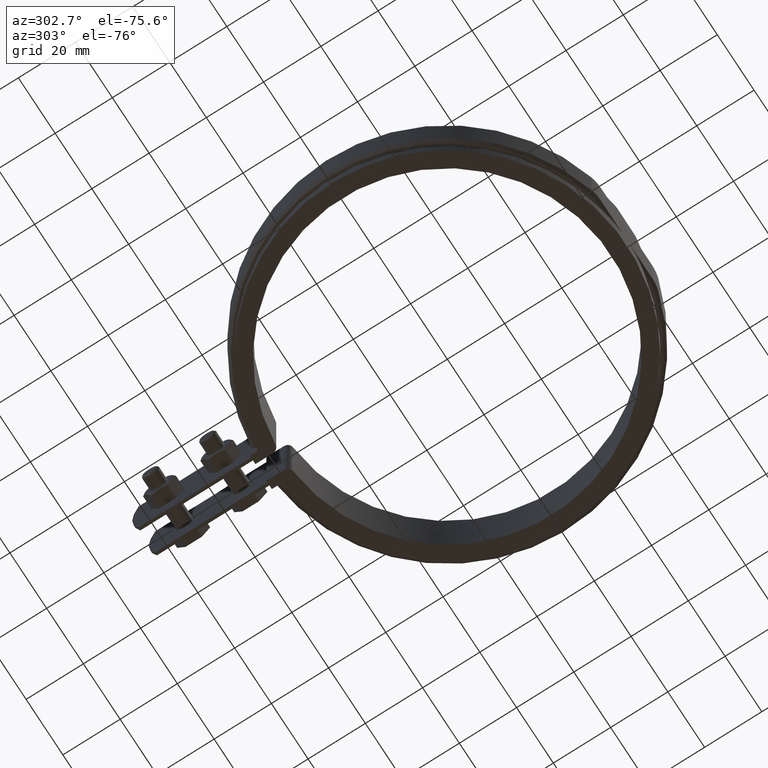
[diagram: clean part render]
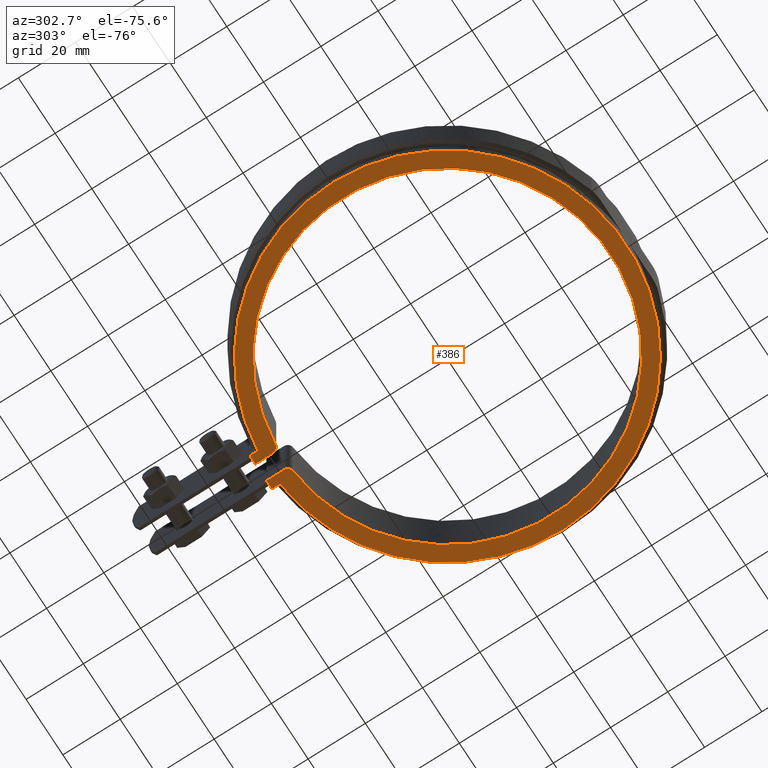
[diagram: same view with one face highlighted and labeled with its STEP entity id]
A machine part, auxiliary view. The second image highlights one B-rep face of the part: STEP entity #386.
In plain terms, the highlighted planar face has unit normal (0, 0, -1).
Its self-contained STEP definition (entity closure, byte-faithful):
#386 = ADVANCED_FACE( '', ( #662 ), #663, .T. );
#662 = FACE_OUTER_BOUND( '', #1512, .T. );
#663 = PLANE( '', #1513 );
#1512 = EDGE_LOOP( '', ( #2955, #2956, #2957, #2958, #2959, #2960, #2961, #2962, #2963, #2964 ) );
#1513 = AXIS2_PLACEMENT_3D( '', #2965, #2966, #2967 );
#2955 = ORIENTED_EDGE( '', *, *, #4119, .F. );
#2956 = ORIENTED_EDGE( '', *, *, #4123, .F. );
#2957 = ORIENTED_EDGE( '', *, *, #4124, .F. );
#2958 = ORIENTED_EDGE( '', *, *, #4125, .F. );
#2959 = ORIENTED_EDGE( '', *, *, #4126, .F. );
#2960 = ORIENTED_EDGE( '', *, *, #4127, .F. );
#2961 = ORIENTED_EDGE( '', *, *, #4128, .F. );
#2962 = ORIENTED_EDGE( '', *, *, #4129, .F. );
#2963 = ORIENTED_EDGE( '', *, *, #4062, .F. );
#2964 = ORIENTED_EDGE( '', *, *, #4094, .F. );
#2965 = CARTESIAN_POINT( '', ( 5.23468562216772, 60.8144995942392, -14.0000000000000 ) );
#2966 = DIRECTION( '', ( 0.000000000000000, 0.000000000000000, -1.00000000000000 ) );
#2967 = DIRECTION( '', ( 0.000000000000000, -1.00000000000000, 0.000000000000000 ) );
#4062 = EDGE_CURVE( '', #4680, #4682, #4683, .T. );
#4094 = EDGE_CURVE( '', #4738, #4680, #4740, .F. );
#4119 = EDGE_CURVE( '', #4781, #4738, #4783, .T. );
#4123 = EDGE_CURVE( '', #4787, #4781, #4788, .T. );
#4124 = EDGE_CURVE( '', #4789, #4787, #4790, .T. );
#4125 = EDGE_CURVE( '', #4791, #4789, #4792, .F. );
#4126 = EDGE_CURVE( '', #4793, #4791, #4794, .T. );
#4127 = EDGE_CURVE( '', #4795, #4793, #4796, .T. );
#4128 = EDGE_CURVE( '', #4797, #4795, #4798, .T. );
#4129 = EDGE_CURVE( '', #4682, #4797, #4799, .F. );
#4680 = VERTEX_POINT( '', #6871 );
#4682 = VERTEX_POINT( '', #6874 );
#4683 = CIRCLE( '', #6875, 57.1500000000000 );
#4738 = VERTEX_POINT( '', #7210 );
#4740 = CIRCLE( '', #7213, 2.00000000000000 );
#4781 = VERTEX_POINT( '', #7355 );
#4783 = LINE( '', #7358, #7359 );
#4787 = VERTEX_POINT( '', #7366 );
#4788 = LINE( '', #7367, #7368 );
#4789 = VERTEX_POINT( '', #7369 );
#4790 = LINE( '', #7370, #7371 );
#4791 = VERTEX_POINT( '', #7372 );
#4792 = CIRCLE( '', #7373, 62.6500000000000 );
#4793 = VERTEX_POINT( '', #7374 );
#4794 = LINE( '', #7375, #7376 );
#4795 = VERTEX_POINT( '', #7377 );
#4796 = LINE( '', #7378, #7379 );
#4797 = VERTEX_POINT( '', #7380 );
#4798 = LINE( '', #7381, #7382 );
#4799 = CIRCLE( '', #7383, 2.00000000000000 );
#6871 = CARTESIAN_POINT( '', ( 4.83093829247673, 56.9454522785998, -14.0000000000000 ) );
#6874 = CARTESIAN_POINT( '', ( -4.83093829247669, 56.9454522785998, -14.0000000000000 ) );
#6875 = AXIS2_PLACEMENT_3D( '', #8233, #8234, #8235 );
#7210 = CARTESIAN_POINT( '', ( 3.00000000000000, 58.9382940031352, -14.0000000000000 ) );
#7213 = AXIS2_PLACEMENT_3D( '', #8272, #8273, #8274 );
#7355 = CARTESIAN_POINT( '', ( 3.00000000000000, 65.1500000000000, -14.0000000000000 ) );
#7358 = CARTESIAN_POINT( '', ( 3.00000000000000, 65.1500000000000, -14.0000000000000 ) );
#7359 = VECTOR( '', #8310, 1000.00000000000 );
#7366 = CARTESIAN_POINT( '', ( 6.00000000000001, 65.1500000000000, -14.0000000000000 ) );
#7367 = CARTESIAN_POINT( '', ( 6.00000000000001, 65.1500000000000, -14.0000000000000 ) );
#7368 = VECTOR( '', #8314, 1000.00000000000 );
#7369 = CARTESIAN_POINT( '', ( 6.00000000000001, 62.3620277091758, -14.0000000000000 ) );
#7370 = CARTESIAN_POINT( '', ( 6.00000000000001, 62.3620277091758, -14.0000000000000 ) );
#7371 = VECTOR( '', #8315, 1000.00000000000 );
#7372 = CARTESIAN_POINT( '', ( -6.00000000000000, 62.3620277091758, -14.0000000000000 ) );
#7373 = AXIS2_PLACEMENT_3D( '', #8316, #8317, #8318 );
#7374 = CARTESIAN_POINT( '', ( -6.00000000000000, 65.1500000000000, -14.0000000000000 ) );
#7375 = CARTESIAN_POINT( '', ( -6.00000000000000, 65.1500000000000, -14.0000000000000 ) );
#7376 = VECTOR( '', #8319, 1000.00000000000 );
#7377 = CARTESIAN_POINT( '', ( -2.99999999999995, 65.1500000000000, -14.0000000000000 ) );
#7378 = CARTESIAN_POINT( '', ( -5.00000000000001, 65.1500000000000, -14.0000000000000 ) );
#7379 = VECTOR( '', #8320, 1000.00000000000 );
#7380 = CARTESIAN_POINT( '', ( -2.99999999999995, 58.9382940031352, -14.0000000000000 ) );
#7381 = CARTESIAN_POINT( '', ( -2.99999999999995, 58.9382940031352, -14.0000000000000 ) );
#7382 = VECTOR( '', #8321, 1000.00000000000 );
#7383 = AXIS2_PLACEMENT_3D( '', #8322, #8323, #8324 );
#8233 = CARTESIAN_POINT( '', ( 0.000000000000000, 0.000000000000000, -14.0000000000000 ) );
#8234 = DIRECTION( '', ( 0.000000000000000, 0.000000000000000, -1.00000000000000 ) );
#8235 = DIRECTION( '', ( -1.00000000000000, 0.000000000000000, 0.000000000000000 ) );
#8272 = CARTESIAN_POINT( '', ( 5.00000000000000, 58.9382940031352, -14.0000000000000 ) );
#8273 = DIRECTION( '', ( 0.000000000000000, 0.000000000000000, -1.00000000000000 ) );
#8274 = DIRECTION( '', ( -1.00000000000000, 0.000000000000000, 0.000000000000000 ) );
#8310 = DIRECTION( '', ( -2.77555756156289E-017, -1.00000000000000, 0.000000000000000 ) );
#8314 = DIRECTION( '', ( -1.00000000000000, 2.67276471009222E-051, 0.000000000000000 ) );
#8315 = DIRECTION( '', ( 5.55111512312579E-017, 1.00000000000000, 0.000000000000000 ) );
#8316 = CARTESIAN_POINT( '', ( 6.93889390390723E-015, 5.55111512312578E-014, -14.0000000000000 ) );
#8317 = DIRECTION( '', ( 0.000000000000000, 0.000000000000000, -1.00000000000000 ) );
#8318 = DIRECTION( '', ( -1.00000000000000, 0.000000000000000, 0.000000000000000 ) );
#8319 = DIRECTION( '', ( -5.55111512312579E-017, -1.00000000000000, 0.000000000000000 ) );
#8320 = DIRECTION( '', ( -1.00000000000000, 2.67276471009222E-051, 0.000000000000000 ) );
#8321 = DIRECTION( '', ( 2.77555756156289E-017, 1.00000000000000, 0.000000000000000 ) );
#8322 = CARTESIAN_POINT( '', ( -4.99999999999995, 58.9382940031352, -14.0000000000000 ) );
#8323 = DIRECTION( '', ( 0.000000000000000, 0.000000000000000, -1.00000000000000 ) );
#8324 = DIRECTION( '', ( -1.00000000000000, 0.000000000000000, 0.000000000000000 ) );